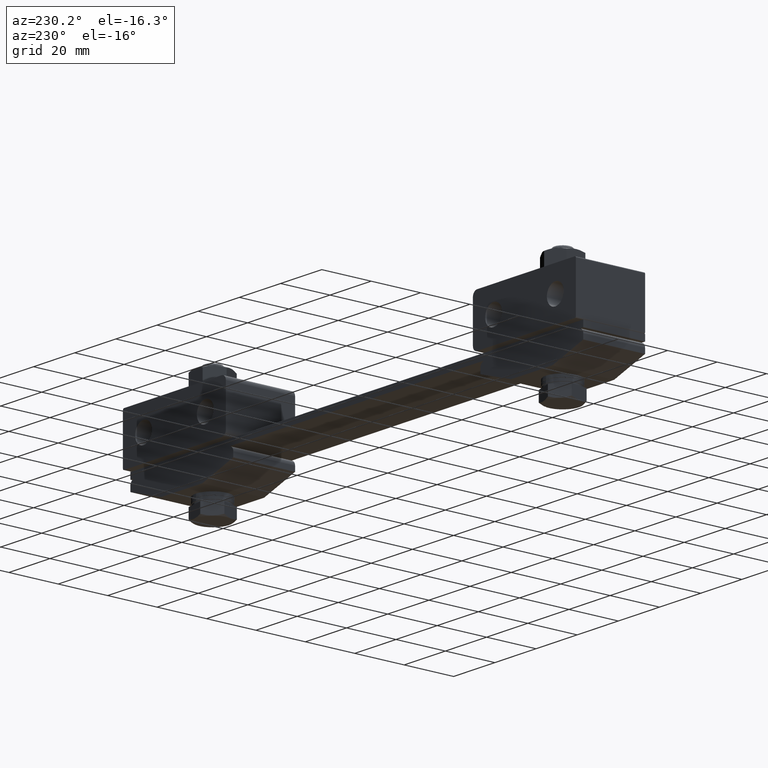
[diagram: clean part render]
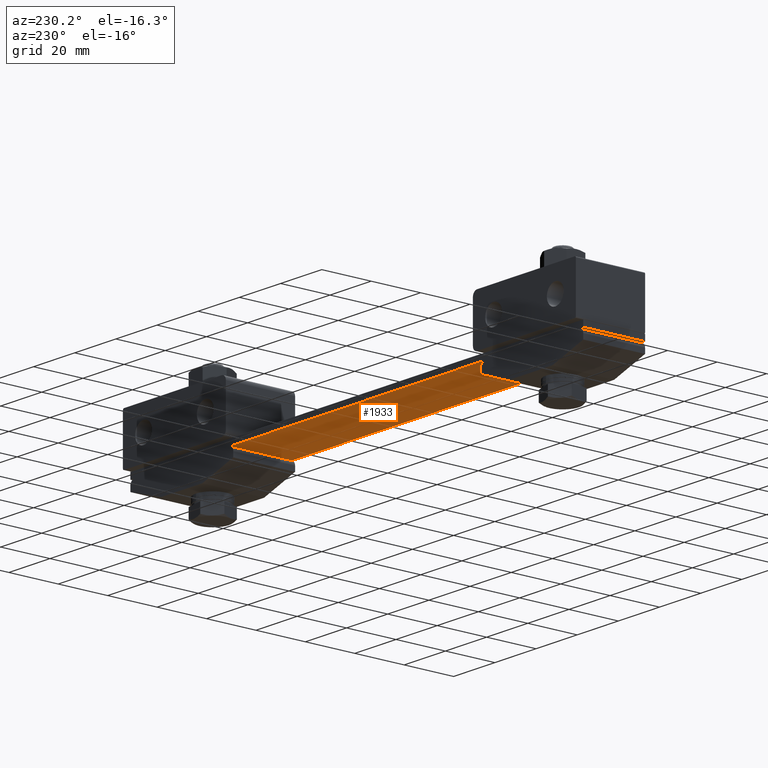
[diagram: same view with one face highlighted and labeled with its STEP entity id]
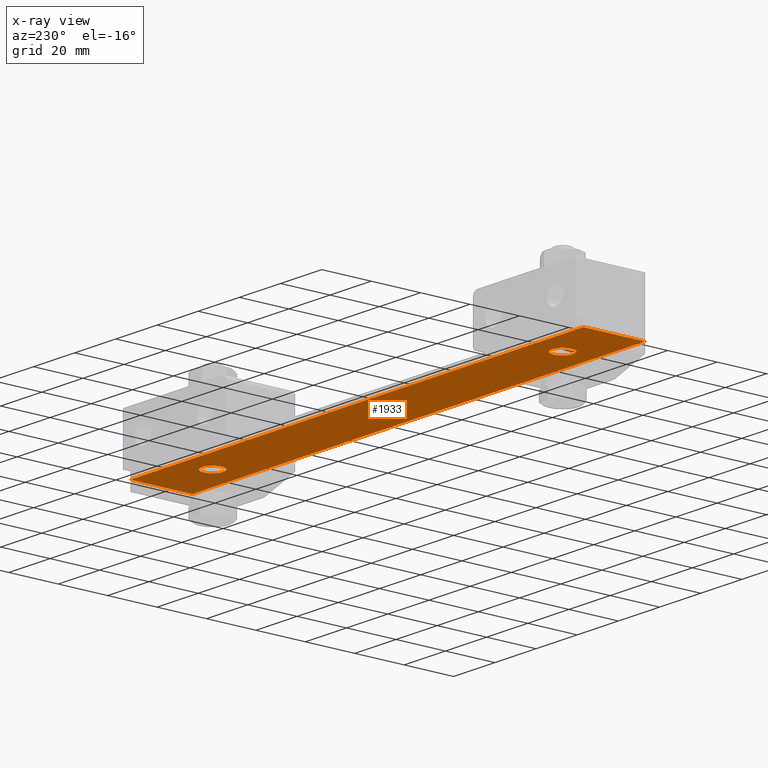
[diagram: x-ray of the same camera — body ghosted, the highlighted face saturated]
A machine part, auxiliary view. The second image highlights one B-rep face of the part: STEP entity #1933.
The next image is the same camera in x-ray: the body ghosted, the highlighted face saturated — about 10% of this face is hidden behind the body in this view.
In plain terms, the highlighted planar face has unit normal (0, 0, 1).
Its self-contained STEP definition (entity closure, byte-faithful):
#54 = EDGE_CURVE ( 'NONE', #10386, #14736, #2742, .T. ) ;
#124 = CARTESIAN_POINT ( 'NONE',  ( 110.0000000000000000, 12.50000000000000000, 0.0000000000000000000 ) ) ;
#134 = DIRECTION ( 'NONE',  ( 1.000000000000000000, 0.0000000000000000000, 0.0000000000000000000 ) ) ;
#139 = CARTESIAN_POINT ( 'NONE',  ( -110.0000000000000000, -12.50000000000000000, 0.0000000000000000000 ) ) ;
#796 = VERTEX_POINT ( 'NONE', #6325 ) ;
#1174 = CIRCLE ( 'NONE', #16886, 4.250000000000003600 ) ;
#1302 = VERTEX_POINT ( 'NONE', #6164 ) ;
#1799 = DIRECTION ( 'NONE',  ( -1.000000000000000000, 0.0000000000000000000, 0.0000000000000000000 ) ) ;
#1933 = ADVANCED_FACE ( 'NONE', ( #4118, #11466, #17633 ), #19335, .F. ) ;
#2056 = EDGE_LOOP ( 'NONE', ( #9724, #11342 ) ) ;
#2392 = VECTOR ( 'NONE', #5350, 1000.000000000000000 ) ;
#2742 = CIRCLE ( 'NONE', #11728, 4.250000000000003600 ) ;
#3226 = CARTESIAN_POINT ( 'NONE',  ( -110.0000000000000000, 12.50000000000000000, 0.0000000000000000000 ) ) ;
#3296 = LINE ( 'NONE', #3226, #7698 ) ;
#3349 = EDGE_CURVE ( 'NONE', #796, #13269, #18084, .T. ) ;
#3791 = ORIENTED_EDGE ( 'NONE', *, *, #18578, .F. ) ;
#4037 = CARTESIAN_POINT ( 'NONE',  ( -80.75000000000000000, 5.204748896376247700E-016, 1.285879139104720000E-016 ) ) ;
#4118 = FACE_BOUND ( 'NONE', #4729, .T. ) ;
#4452 = AXIS2_PLACEMENT_3D ( 'NONE', #14267, #4654, #4857 ) ;
#4582 = ORIENTED_EDGE ( 'NONE', *, *, #3349, .F. ) ;
#4654 = DIRECTION ( 'NONE',  ( 0.0000000000000000000, 0.0000000000000000000, -1.000000000000000000 ) ) ;
#4725 = AXIS2_PLACEMENT_3D ( 'NONE', #16798, #11918, #13438 ) ;
#4729 = EDGE_LOOP ( 'NONE', ( #4869, #20060 ) ) ;
#4754 = DIRECTION ( 'NONE',  ( -1.000000000000000000, 0.0000000000000000000, 0.0000000000000000000 ) ) ;
#4857 = DIRECTION ( 'NONE',  ( -1.000000000000000000, 0.0000000000000000000, 0.0000000000000000000 ) ) ;
#4869 = ORIENTED_EDGE ( 'NONE', *, *, #54, .F. ) ;
#5195 = CARTESIAN_POINT ( 'NONE',  ( -110.0000000000000000, -12.50000000000000000, 0.0000000000000000000 ) ) ;
#5350 = DIRECTION ( 'NONE',  ( 0.0000000000000000000, -1.000000000000000000, 0.0000000000000000000 ) ) ;
#5524 = CARTESIAN_POINT ( 'NONE',  ( 89.25000000000001400, 2.133878290461802200E-014, 1.285879139104720000E-016 ) ) ;
#6164 = CARTESIAN_POINT ( 'NONE',  ( 80.75000000000000000, 2.081830801498040100E-014, 1.285879139104720000E-016 ) ) ;
#6307 = DIRECTION ( 'NONE',  ( 0.0000000000000000000, 1.000000000000000000, 0.0000000000000000000 ) ) ;
#6325 = CARTESIAN_POINT ( 'NONE',  ( 110.0000000000000000, -12.50000000000000000, 0.0000000000000000000 ) ) ;
#6449 = ORIENTED_EDGE ( 'NONE', *, *, #13973, .F. ) ;
#7499 = AXIS2_PLACEMENT_3D ( 'NONE', #5195, #16031, #15961 ) ;
#7698 = VECTOR ( 'NONE', #4754, 1000.000000000000000 ) ;
#8042 = DIRECTION ( 'NONE',  ( 0.0000000000000000000, 0.0000000000000000000, -1.000000000000000000 ) ) ;
#8585 = DIRECTION ( 'NONE',  ( -1.000000000000000000, 0.0000000000000000000, 0.0000000000000000000 ) ) ;
#9114 = EDGE_LOOP ( 'NONE', ( #19668, #3791, #4582, #6449 ) ) ;
#9628 = LINE ( 'NONE', #12432, #12617 ) ;
#9724 = ORIENTED_EDGE ( 'NONE', *, *, #17127, .F. ) ;
#9956 = CARTESIAN_POINT ( 'NONE',  ( -85.00000000000000000, 0.0000000000000000000, 1.285879139104720000E-016 ) ) ;
#9961 = LINE ( 'NONE', #19294, #2392 ) ;
#10386 = VERTEX_POINT ( 'NONE', #16377 ) ;
#11155 = VERTEX_POINT ( 'NONE', #139 ) ;
#11195 = CARTESIAN_POINT ( 'NONE',  ( 85.00000000000000000, 2.081830801498040100E-014, 1.285879139104720000E-016 ) ) ;
#11342 = ORIENTED_EDGE ( 'NONE', *, *, #19610, .F. ) ;
#11466 = FACE_BOUND ( 'NONE', #2056, .T. ) ;
#11728 = AXIS2_PLACEMENT_3D ( 'NONE', #9956, #18011, #8585 ) ;
#11918 = DIRECTION ( 'NONE',  ( 0.0000000000000000000, 0.0000000000000000000, -1.000000000000000000 ) ) ;
#12392 = EDGE_CURVE ( 'NONE', #15270, #11155, #9961, .T. ) ;
#12432 = CARTESIAN_POINT ( 'NONE',  ( -110.0000000000000000, -12.50000000000000000, 0.0000000000000000000 ) ) ;
#12617 = VECTOR ( 'NONE', #134, 1000.000000000000000 ) ;
#13269 = VERTEX_POINT ( 'NONE', #16667 ) ;
#13438 = DIRECTION ( 'NONE',  ( -1.000000000000000000, 0.0000000000000000000, 0.0000000000000000000 ) ) ;
#13639 = VECTOR ( 'NONE', #6307, 1000.000000000000000 ) ;
#13752 = VERTEX_POINT ( 'NONE', #5524 ) ;
#13973 = EDGE_CURVE ( 'NONE', #11155, #796, #9628, .T. ) ;
#14267 = CARTESIAN_POINT ( 'NONE',  ( -85.00000000000000000, 0.0000000000000000000, 1.285879139104720000E-016 ) ) ;
#14736 = VERTEX_POINT ( 'NONE', #4037 ) ;
#15119 = CARTESIAN_POINT ( 'NONE',  ( -110.0000000000000000, 12.50000000000000000, 0.0000000000000000000 ) ) ;
#15270 = VERTEX_POINT ( 'NONE', #15119 ) ;
#15961 = DIRECTION ( 'NONE',  ( 1.000000000000000000, 0.0000000000000000000, 0.0000000000000000000 ) ) ;
#16031 = DIRECTION ( 'NONE',  ( 0.0000000000000000000, 0.0000000000000000000, 1.000000000000000000 ) ) ;
#16377 = CARTESIAN_POINT ( 'NONE',  ( -89.25000000000001400, 0.0000000000000000000, 1.285879139104720000E-016 ) ) ;
#16667 = CARTESIAN_POINT ( 'NONE',  ( 110.0000000000000000, 12.50000000000000000, 0.0000000000000000000 ) ) ;
#16742 = EDGE_CURVE ( 'NONE', #14736, #10386, #16924, .T. ) ;
#16798 = CARTESIAN_POINT ( 'NONE',  ( 85.00000000000000000, 2.081830801498040100E-014, 1.285879139104720000E-016 ) ) ;
#16886 = AXIS2_PLACEMENT_3D ( 'NONE', #11195, #8042, #1799 ) ;
#16924 = CIRCLE ( 'NONE', #4452, 4.250000000000003600 ) ;
#17127 = EDGE_CURVE ( 'NONE', #1302, #13752, #20092, .T. ) ;
#17633 = FACE_OUTER_BOUND ( 'NONE', #9114, .T. ) ;
#18011 = DIRECTION ( 'NONE',  ( 0.0000000000000000000, 0.0000000000000000000, -1.000000000000000000 ) ) ;
#18084 = LINE ( 'NONE', #124, #13639 ) ;
#18578 = EDGE_CURVE ( 'NONE', #13269, #15270, #3296, .T. ) ;
#19294 = CARTESIAN_POINT ( 'NONE',  ( -110.0000000000000000, 12.50000000000000000, 0.0000000000000000000 ) ) ;
#19335 = PLANE ( 'NONE',  #7499 ) ;
#19610 = EDGE_CURVE ( 'NONE', #13752, #1302, #1174, .T. ) ;
#19668 = ORIENTED_EDGE ( 'NONE', *, *, #12392, .F. ) ;
#20060 = ORIENTED_EDGE ( 'NONE', *, *, #16742, .F. ) ;
#20092 = CIRCLE ( 'NONE', #4725, 4.250000000000003600 ) ;